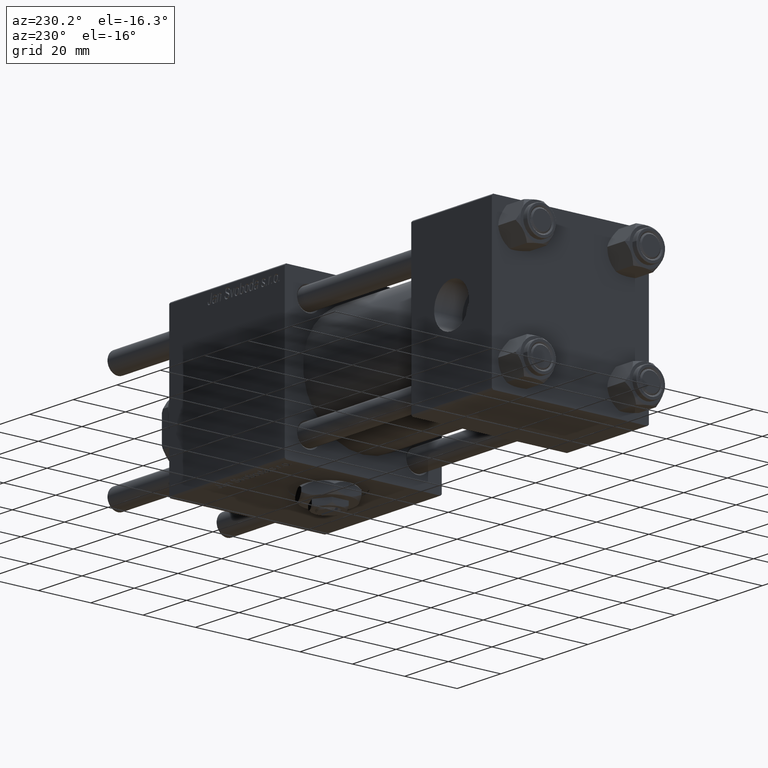
[diagram: clean part render]
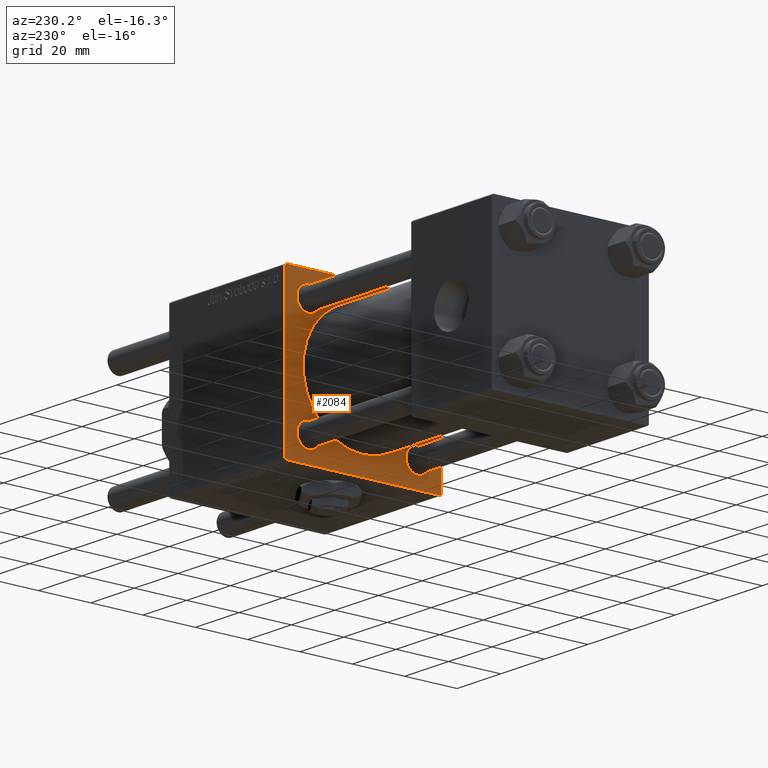
[diagram: same view with one face highlighted and labeled with its STEP entity id]
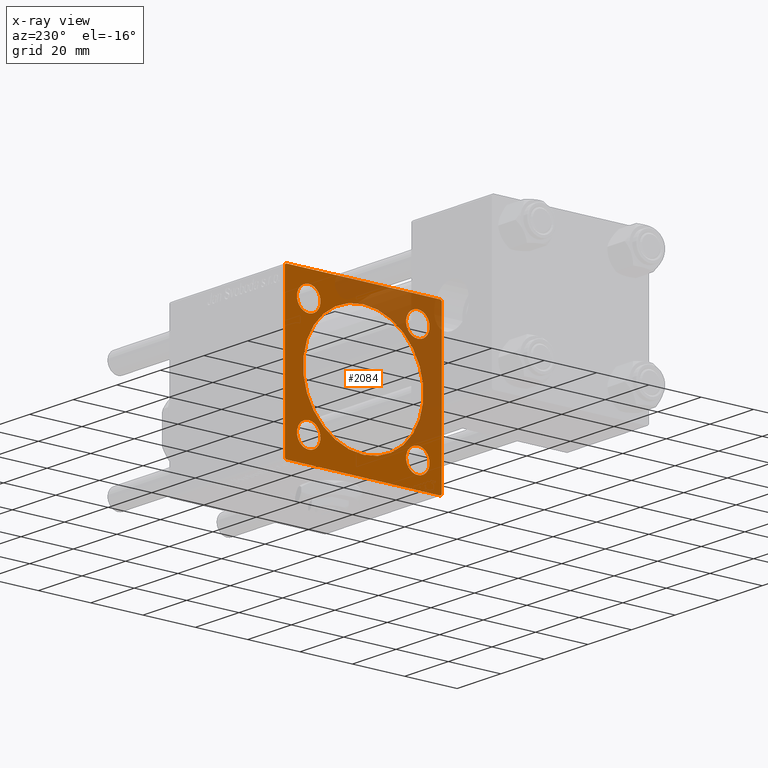
[diagram: x-ray of the same camera — body ghosted, the highlighted face saturated]
A machine part, auxiliary view. The second image highlights one B-rep face of the part: STEP entity #2084.
The next image is the same camera in x-ray: the body ghosted, the highlighted face saturated — about 36% of this face is hidden behind the body in this view.
In plain terms, the highlighted planar face has unit normal (-1, 0, 0).
Its self-contained STEP definition (entity closure, byte-faithful):
#1396 = AXIS2_PLACEMENT_3D ( 'NONE', #57469, #34929, #52453 ) ;
#1865 = VERTEX_POINT ( 'NONE', #7202 ) ;
#2084 = ADVANCED_FACE ( 'NONE', ( #56693, #35030, #15757, #53141, #30589, #24673 ), #20216, .T. ) ;
#2095 = CARTESIAN_POINT ( 'NONE',  ( 95.00000000000000000, 0.000000000000000000, 0.000000000000000000 ) ) ;
#2814 = CARTESIAN_POINT ( 'NONE',  ( 95.00000000000000000, 30.00000000000000000, 29.50000000000000000 ) ) ;
#2919 = CARTESIAN_POINT ( 'NONE',  ( 95.00000000000000000, -20.84999999999999076, -20.85000000000000497 ) ) ;
#3097 = DIRECTION ( 'NONE',  ( 1.000000000000000000, -0.000000000000000000, 0.000000000000000000 ) ) ;
#3177 = DIRECTION ( 'NONE',  ( 1.000000000000000000, -0.000000000000000000, 0.000000000000000000 ) ) ;
#3284 = CARTESIAN_POINT ( 'NONE',  ( 95.00000000000000000, 20.84999999999999787, -16.34999999999999787 ) ) ;
#3870 = LINE ( 'NONE', #13960, #25229 ) ;
#3910 = VERTEX_POINT ( 'NONE', #3284 ) ;
#3922 = CARTESIAN_POINT ( 'NONE',  ( 95.00000000000000000, -2.602085213965210642E-15, 23.00000000000000000 ) ) ;
#4088 = LINE ( 'NONE', #35844, #9393 ) ;
#6269 = CARTESIAN_POINT ( 'NONE',  ( 95.00000000000000000, 29.74999999999999645, 29.74999999999999645 ) ) ;
#6479 = CIRCLE ( 'NONE', #49171, 23.00000000000000000 ) ;
#6546 = CARTESIAN_POINT ( 'NONE',  ( 95.00000000000000000, -20.84999999999999076, 20.85000000000000497 ) ) ;
#6897 = CARTESIAN_POINT ( 'NONE',  ( 95.00000000000000000, -29.74999999999999645, 29.74999999999999645 ) ) ;
#7133 = DIRECTION ( 'NONE',  ( 1.000000000000000000, -0.000000000000000000, 0.000000000000000000 ) ) ;
#7202 = CARTESIAN_POINT ( 'NONE',  ( 95.00000000000000000, 20.84999999999999787, 16.34999999999999787 ) ) ;
#7628 = CARTESIAN_POINT ( 'NONE',  ( 95.00000000000000000, 20.84999999999999787, 20.85000000000000142 ) ) ;
#8658 = CARTESIAN_POINT ( 'NONE',  ( 95.00000000000000000, 20.84999999999999787, -20.85000000000000142 ) ) ;
#9197 = VERTEX_POINT ( 'NONE', #57489 ) ;
#9343 = AXIS2_PLACEMENT_3D ( 'NONE', #8658, #22615, #18163 ) ;
#9393 = VECTOR ( 'NONE', #48336, 1000.000000000000114 ) ;
#9770 = DIRECTION ( 'NONE',  ( 0.000000000000000000, 0.000000000000000000, -1.000000000000000000 ) ) ;
#9899 = CIRCLE ( 'NONE', #51626, 4.500000000000003553 ) ;
#10513 = CARTESIAN_POINT ( 'NONE',  ( 95.00000000000000000, -20.84999999999999076, 16.35000000000000142 ) ) ;
#10632 = CARTESIAN_POINT ( 'NONE',  ( 95.00000000000000000, -29.74999999999999645, -29.74999999999999645 ) ) ;
#10748 = CARTESIAN_POINT ( 'NONE',  ( 95.00000000000000000, 29.50000000000000000, -29.99999999999999289 ) ) ;
#10843 = DIRECTION ( 'NONE',  ( 0.000000000000000000, 0.000000000000000000, -1.000000000000000000 ) ) ;
#11188 = CARTESIAN_POINT ( 'NONE',  ( 95.00000000000000000, -20.84999999999999076, -16.35000000000000142 ) ) ;
#12092 = DIRECTION ( 'NONE',  ( 0.000000000000000000, 0.000000000000000000, -1.000000000000000000 ) ) ;
#12256 = CIRCLE ( 'NONE', #57749, 23.00000000000000000 ) ;
#12308 = LINE ( 'NONE', #10632, #43147 ) ;
#12490 = VECTOR ( 'NONE', #10843, 1000.000000000000000 ) ;
#12544 = ORIENTED_EDGE ( 'NONE', *, *, #50755, .T. ) ;
#12750 = EDGE_CURVE ( 'NONE', #13502, #46901, #15304, .T. ) ;
#12774 = DIRECTION ( 'NONE',  ( -0.000000000000000000, 0.000000000000000000, 1.000000000000000000 ) ) ;
#12821 = CARTESIAN_POINT ( 'NONE',  ( 95.00000000000000000, 20.84999999999999787, -25.35000000000000497 ) ) ;
#12903 = VERTEX_POINT ( 'NONE', #27728 ) ;
#13502 = VERTEX_POINT ( 'NONE', #2814 ) ;
#13553 = ORIENTED_EDGE ( 'NONE', *, *, #29582, .T. ) ;
#13789 = AXIS2_PLACEMENT_3D ( 'NONE', #2919, #56637, #16297 ) ;
#13960 = CARTESIAN_POINT ( 'NONE',  ( 95.00000000000000000, 30.00000000000000000, 30.00000000000000000 ) ) ;
#14219 = DIRECTION ( 'NONE',  ( 1.000000000000000000, 0.000000000000000000, 0.000000000000000000 ) ) ;
#14258 = DIRECTION ( 'NONE',  ( 0.000000000000000000, -1.000000000000000000, -1.156482317317871478E-16 ) ) ;
#14851 = AXIS2_PLACEMENT_3D ( 'NONE', #39860, #57958, #32724 ) ;
#15021 = VERTEX_POINT ( 'NONE', #35867 ) ;
#15304 = LINE ( 'NONE', #33410, #12490 ) ;
#15757 = FACE_BOUND ( 'NONE', #45641, .T. ) ;
#15983 = CIRCLE ( 'NONE', #9343, 4.500000000000003553 ) ;
#16153 = CARTESIAN_POINT ( 'NONE',  ( 95.00000000000000000, -20.84999999999999076, 25.35000000000000853 ) ) ;
#16217 = ORIENTED_EDGE ( 'NONE', *, *, #54066, .T. ) ;
#16297 = DIRECTION ( 'NONE',  ( 0.000000000000000000, 0.000000000000000000, 1.000000000000000000 ) ) ;
#16486 = ORIENTED_EDGE ( 'NONE', *, *, #40937, .T. ) ;
#16504 = CARTESIAN_POINT ( 'NONE',  ( 95.00000000000000000, -20.84999999999999076, -25.35000000000000853 ) ) ;
#16542 = LINE ( 'NONE', #39970, #30145 ) ;
#16944 = ORIENTED_EDGE ( 'NONE', *, *, #43646, .T. ) ;
#18163 = DIRECTION ( 'NONE',  ( 0.000000000000000000, 0.000000000000000000, 1.000000000000000000 ) ) ;
#18459 = CIRCLE ( 'NONE', #32656, 4.500000000000003553 ) ;
#18769 = ORIENTED_EDGE ( 'NONE', *, *, #12750, .T. ) ;
#18962 = VECTOR ( 'NONE', #24734, 1000.000000000000114 ) ;
#20195 = EDGE_CURVE ( 'NONE', #26306, #12903, #49850, .T. ) ;
#20216 = PLANE ( 'NONE',  #46466 ) ;
#20277 = LINE ( 'NONE', #6897, #18962 ) ;
#20946 = EDGE_CURVE ( 'NONE', #42400, #38494, #9899, .T. ) ;
#21307 = VECTOR ( 'NONE', #27303, 1000.000000000000000 ) ;
#22615 = DIRECTION ( 'NONE',  ( 1.000000000000000000, -0.000000000000000000, 0.000000000000000000 ) ) ;
#22827 = VERTEX_POINT ( 'NONE', #16504 ) ;
#23160 = CIRCLE ( 'NONE', #30751, 4.500000000000003553 ) ;
#23744 = EDGE_CURVE ( 'NONE', #22827, #51741, #43139, .T. ) ;
#24222 = VERTEX_POINT ( 'NONE', #33601 ) ;
#24673 = FACE_OUTER_BOUND ( 'NONE', #28941, .T. ) ;
#24734 = DIRECTION ( 'NONE',  ( -0.000000000000000000, 0.7071067811865474617, 0.7071067811865474617 ) ) ;
#25229 = VECTOR ( 'NONE', #14258, 1000.000000000000000 ) ;
#26306 = VERTEX_POINT ( 'NONE', #10748 ) ;
#26947 = ORIENTED_EDGE ( 'NONE', *, *, #57137, .T. ) ;
#27303 = DIRECTION ( 'NONE',  ( 0.000000000000000000, -1.000000000000000000, -1.156482317317871478E-16 ) ) ;
#27356 = AXIS2_PLACEMENT_3D ( 'NONE', #36905, #32175, #27438 ) ;
#27438 = DIRECTION ( 'NONE',  ( 0.000000000000000000, 0.000000000000000000, 1.000000000000000000 ) ) ;
#27728 = CARTESIAN_POINT ( 'NONE',  ( 95.00000000000000000, -29.50000000000000000, -30.00000000000000000 ) ) ;
#28683 = ORIENTED_EDGE ( 'NONE', *, *, #54558, .T. ) ;
#28941 = EDGE_LOOP ( 'NONE', ( #39962, #16486, #41702, #26947, #55079, #13553, #18769, #12544 ) ) ;
#29582 = EDGE_CURVE ( 'NONE', #9197, #13502, #46946, .T. ) ;
#29830 = EDGE_CURVE ( 'NONE', #9197, #52084, #3870, .T. ) ;
#30145 = VECTOR ( 'NONE', #12092, 1000.000000000000000 ) ;
#30589 = FACE_BOUND ( 'NONE', #49736, .T. ) ;
#30751 = AXIS2_PLACEMENT_3D ( 'NONE', #7628, #3177, #39981 ) ;
#31209 = ORIENTED_EDGE ( 'NONE', *, *, #54469, .T. ) ;
#32098 = VERTEX_POINT ( 'NONE', #51777 ) ;
#32175 = DIRECTION ( 'NONE',  ( 1.000000000000000000, -0.000000000000000000, 0.000000000000000000 ) ) ;
#32656 = AXIS2_PLACEMENT_3D ( 'NONE', #43464, #3097, #39020 ) ;
#32724 = DIRECTION ( 'NONE',  ( 0.000000000000000000, 0.000000000000000000, 1.000000000000000000 ) ) ;
#33410 = CARTESIAN_POINT ( 'NONE',  ( 95.00000000000000000, 30.00000000000000000, 30.00000000000000000 ) ) ;
#33423 = ORIENTED_EDGE ( 'NONE', *, *, #23744, .T. ) ;
#33601 = CARTESIAN_POINT ( 'NONE',  ( 95.00000000000000000, -30.00000000000000000, -29.49999999999998579 ) ) ;
#34004 = VERTEX_POINT ( 'NONE', #53183 ) ;
#34447 = DIRECTION ( 'NONE',  ( 0.000000000000000000, 0.000000000000000000, 1.000000000000000000 ) ) ;
#34929 = DIRECTION ( 'NONE',  ( 1.000000000000000000, -0.000000000000000000, 0.000000000000000000 ) ) ;
#35030 = FACE_BOUND ( 'NONE', #52252, .T. ) ;
#35668 = ORIENTED_EDGE ( 'NONE', *, *, #37809, .T. ) ;
#35844 = CARTESIAN_POINT ( 'NONE',  ( 95.00000000000000000, 29.74999999999999645, -29.74999999999999645 ) ) ;
#35867 = CARTESIAN_POINT ( 'NONE',  ( 95.00000000000000000, 20.84999999999999787, 25.35000000000000497 ) ) ;
#36659 = CIRCLE ( 'NONE', #14851, 4.500000000000003553 ) ;
#36905 = CARTESIAN_POINT ( 'NONE',  ( 95.00000000000000000, -20.84999999999999076, -20.85000000000000497 ) ) ;
#37189 = ORIENTED_EDGE ( 'NONE', *, *, #56230, .T. ) ;
#37422 = CIRCLE ( 'NONE', #1396, 4.500000000000003553 ) ;
#37809 = EDGE_CURVE ( 'NONE', #41313, #3910, #18459, .T. ) ;
#38297 = DIRECTION ( 'NONE',  ( -1.000000000000000000, 0.000000000000000000, -0.000000000000000000 ) ) ;
#38315 = DIRECTION ( 'NONE',  ( 0.000000000000000000, 0.7071067811865474617, -0.7071067811865474617 ) ) ;
#38404 = EDGE_CURVE ( 'NONE', #1865, #15021, #23160, .T. ) ;
#38494 = VERTEX_POINT ( 'NONE', #16153 ) ;
#39020 = DIRECTION ( 'NONE',  ( 0.000000000000000000, 0.000000000000000000, 1.000000000000000000 ) ) ;
#39723 = EDGE_CURVE ( 'NONE', #15021, #1865, #37422, .T. ) ;
#39860 = CARTESIAN_POINT ( 'NONE',  ( 95.00000000000000000, -20.84999999999999076, 20.85000000000000497 ) ) ;
#39962 = ORIENTED_EDGE ( 'NONE', *, *, #20195, .T. ) ;
#39970 = CARTESIAN_POINT ( 'NONE',  ( 95.00000000000000000, -30.00000000000000000, 29.99999999999999289 ) ) ;
#39981 = DIRECTION ( 'NONE',  ( 0.000000000000000000, 0.000000000000000000, 1.000000000000000000 ) ) ;
#40031 = DIRECTION ( 'NONE',  ( 0.000000000000000000, 0.000000000000000000, -1.000000000000000000 ) ) ;
#40802 = ORIENTED_EDGE ( 'NONE', *, *, #38404, .T. ) ;
#40937 = EDGE_CURVE ( 'NONE', #12903, #24222, #12308, .T. ) ;
#41313 = VERTEX_POINT ( 'NONE', #12821 ) ;
#41536 = CARTESIAN_POINT ( 'NONE',  ( 95.00000000000000000, 30.00000000000000000, -29.99999999999999289 ) ) ;
#41702 = ORIENTED_EDGE ( 'NONE', *, *, #52827, .F. ) ;
#42400 = VERTEX_POINT ( 'NONE', #10513 ) ;
#43139 = CIRCLE ( 'NONE', #13789, 4.500000000000003553 ) ;
#43147 = VECTOR ( 'NONE', #47633, 1000.000000000000114 ) ;
#43464 = CARTESIAN_POINT ( 'NONE',  ( 95.00000000000000000, 20.84999999999999787, -20.85000000000000142 ) ) ;
#43646 = EDGE_CURVE ( 'NONE', #38494, #42400, #36659, .T. ) ;
#43887 = CARTESIAN_POINT ( 'NONE',  ( 95.00000000000000000, -2.602085213965210642E-15, 0.000000000000000000 ) ) ;
#45067 = CARTESIAN_POINT ( 'NONE',  ( 95.00000000000000000, -29.50000000000000000, 29.99999999999999289 ) ) ;
#45169 = ORIENTED_EDGE ( 'NONE', *, *, #39723, .T. ) ;
#45349 = CIRCLE ( 'NONE', #27356, 4.500000000000003553 ) ;
#45641 = EDGE_LOOP ( 'NONE', ( #31209, #35668 ) ) ;
#46466 = AXIS2_PLACEMENT_3D ( 'NONE', #2095, #38297, #12774 ) ;
#46901 = VERTEX_POINT ( 'NONE', #51182 ) ;
#46946 = LINE ( 'NONE', #6269, #52731 ) ;
#47633 = DIRECTION ( 'NONE',  ( 0.000000000000000000, -0.7071067811865474617, 0.7071067811865474617 ) ) ;
#48336 = DIRECTION ( 'NONE',  ( -0.000000000000000000, -0.7071067811865474617, -0.7071067811865474617 ) ) ;
#49171 = AXIS2_PLACEMENT_3D ( 'NONE', #43887, #58417, #40031 ) ;
#49736 = EDGE_LOOP ( 'NONE', ( #37189, #28683 ) ) ;
#49850 = LINE ( 'NONE', #41536, #21307 ) ;
#50131 = CARTESIAN_POINT ( 'NONE',  ( 95.00000000000000000, -2.602085213965210642E-15, 0.000000000000000000 ) ) ;
#50755 = EDGE_CURVE ( 'NONE', #46901, #26306, #4088, .T. ) ;
#51010 = EDGE_LOOP ( 'NONE', ( #16944, #53750 ) ) ;
#51182 = CARTESIAN_POINT ( 'NONE',  ( 95.00000000000000000, 30.00000000000000000, -29.49999999999997868 ) ) ;
#51626 = AXIS2_PLACEMENT_3D ( 'NONE', #6546, #7133, #34447 ) ;
#51741 = VERTEX_POINT ( 'NONE', #11188 ) ;
#51777 = CARTESIAN_POINT ( 'NONE',  ( 95.00000000000000000, -30.00000000000000000, 29.49999999999999289 ) ) ;
#52008 = VERTEX_POINT ( 'NONE', #3922 ) ;
#52084 = VERTEX_POINT ( 'NONE', #45067 ) ;
#52252 = EDGE_LOOP ( 'NONE', ( #45169, #40802 ) ) ;
#52453 = DIRECTION ( 'NONE',  ( 0.000000000000000000, 0.000000000000000000, 1.000000000000000000 ) ) ;
#52731 = VECTOR ( 'NONE', #38315, 1000.000000000000114 ) ;
#52827 = EDGE_CURVE ( 'NONE', #32098, #24222, #16542, .T. ) ;
#53141 = FACE_BOUND ( 'NONE', #55988, .T. ) ;
#53183 = CARTESIAN_POINT ( 'NONE',  ( 95.00000000000000000, 2.146024240737012665E-16, -23.00000000000000000 ) ) ;
#53750 = ORIENTED_EDGE ( 'NONE', *, *, #20946, .T. ) ;
#54066 = EDGE_CURVE ( 'NONE', #51741, #22827, #45349, .T. ) ;
#54469 = EDGE_CURVE ( 'NONE', #3910, #41313, #15983, .T. ) ;
#54558 = EDGE_CURVE ( 'NONE', #34004, #52008, #6479, .T. ) ;
#55079 = ORIENTED_EDGE ( 'NONE', *, *, #29830, .F. ) ;
#55988 = EDGE_LOOP ( 'NONE', ( #16217, #33423 ) ) ;
#56230 = EDGE_CURVE ( 'NONE', #52008, #34004, #12256, .T. ) ;
#56637 = DIRECTION ( 'NONE',  ( 1.000000000000000000, -0.000000000000000000, 0.000000000000000000 ) ) ;
#56693 = FACE_BOUND ( 'NONE', #51010, .T. ) ;
#57137 = EDGE_CURVE ( 'NONE', #32098, #52084, #20277, .T. ) ;
#57469 = CARTESIAN_POINT ( 'NONE',  ( 95.00000000000000000, 20.84999999999999787, 20.85000000000000142 ) ) ;
#57489 = CARTESIAN_POINT ( 'NONE',  ( 95.00000000000000000, 29.50000000000000000, 30.00000000000000000 ) ) ;
#57749 = AXIS2_PLACEMENT_3D ( 'NONE', #50131, #14219, #9770 ) ;
#57958 = DIRECTION ( 'NONE',  ( 1.000000000000000000, -0.000000000000000000, 0.000000000000000000 ) ) ;
#58417 = DIRECTION ( 'NONE',  ( 1.000000000000000000, 0.000000000000000000, 0.000000000000000000 ) ) ;